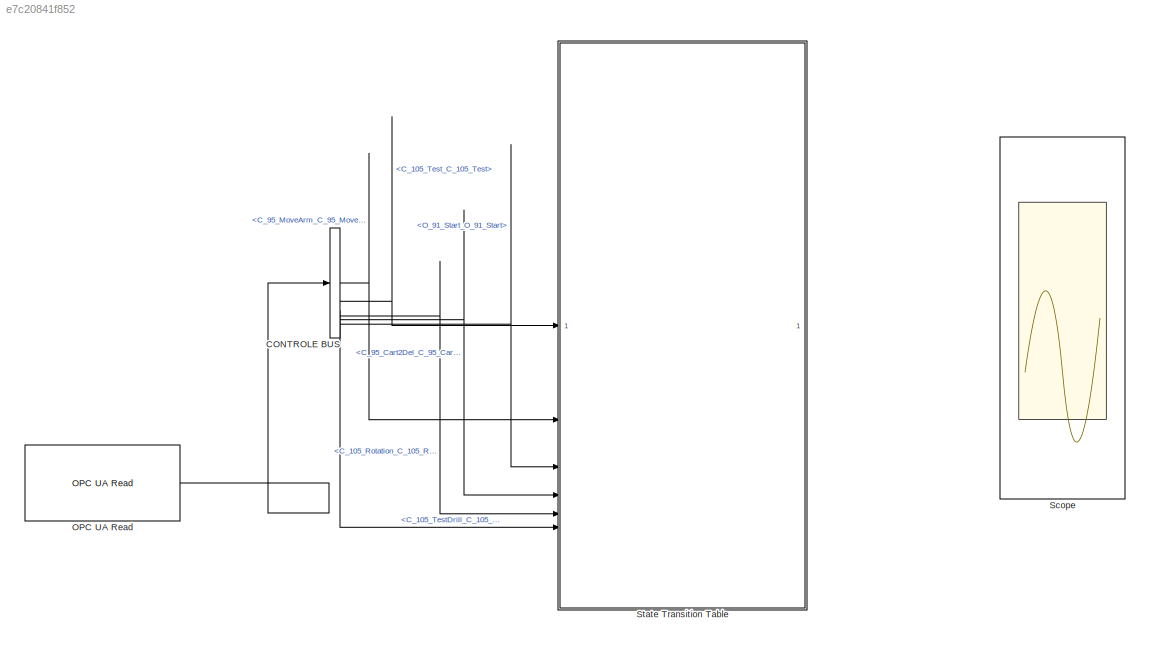
MODEL slx_e7c20841f852
KIND model
CONFIG AbsTol = auto
CONFIG EnableMultiTasking = off
CONFIG FixedStep = auto
CONFIG MaxStep = auto
CONFIG MinStep = auto
CONFIG RelTol = 1e-3
CONFIG SampleTimeConstraint = Unconstrained
CONFIG SolverName = VariableStepAuto
CONFIG StartTime = 0.0
CONFIG StopTime = 30
BLOCK [BusSelector] CONTROLE BUS 
  OutputSignals = C_95_MoveArm_C_95_MoveArm,C_105_Test_C_105_Test,C_105_TestDrill_C_105_TestDrill,C_105_Rotation_C_105_Rotation,C_95_Cart2Del_C_95_Cart2Del,C_95_Del2Cart_C_95_Del2Cart,O_91_Start_O_91_Start
BLOCK [Reference] OPC UA Read  REF=opcualib/OPC UA Read
  SourceBlock = opcualib/OPC UA Read
  SourceType = opcUARead
BLOCK [Scope] Scope
  Floating = off
  NumInputPorts = 1
  ScopeSpecificationString = Simulink.scopes.TimeScopeBlockCfg('CurrentConfiguration', extmgr.ConfigurationSet(extmgr.Configuration('Core','General UI',true),extmgr.Configuration('Core','Source UI',true),extmgr.Configuration('Sources','WiredSimulink',true),extmgr.Configuration('Visuals','Time Domain',true),extmgr.Configuration('Tools','Plot Navigation',true),extmgr.Configuration('Tools','Measurements',true)),'Version','2024a'...<+1ch>
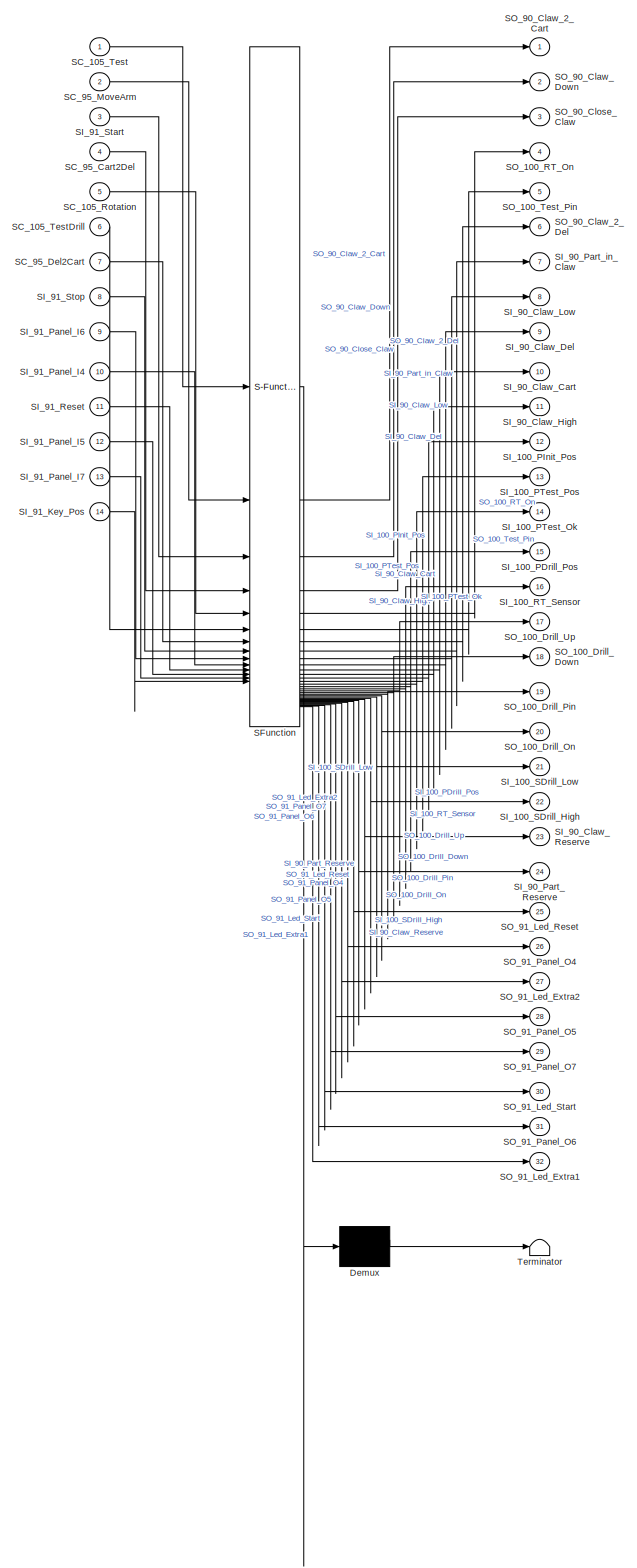
[diagram: State Transition Table - part 1/1, most of the canvas]
BLOCK [SubSystem] State Transition Table
  ErrorFcn = Stateflow.Translate.translate
  PermitHierarchicalResolution = ExplicitOnly
  SFBlockType = State Transition Table
  TreatAsAtomicUnit = on
BLOCK [Demux] State Transition Table/ Demux 
  Outputs = 1
BLOCK [S-Function] State Transition Table/ SFunction 
  EnableBusSupport = on
  FunctionName = sf_sfun
  PortCounts = [14 33]
  SFcnIsStateOwnerBlock = off
  SFunctionDeploymentMode = off
  Tag = Stateflow S-Function 4
BLOCK [Terminator] State Transition Table/ Terminator 
BLOCK [Inport] State Transition Table/SC_105_Rotation
  Port = 5
BLOCK [Inport] State Transition Table/SC_105_Test
BLOCK [Inport] State Transition Table/SC_105_TestDrill
  Port = 6
BLOCK [Inport] State Transition Table/SC_95_Cart2Del
  Port = 4
BLOCK [Inport] State Transition Table/SC_95_Del2Cart
  Port = 7
BLOCK [Inport] State Transition Table/SC_95_MoveArm
  Port = 2
BLOCK [Outport] State Transition Table/SI_100_PDrill_Pos
  Port = 15
BLOCK [Outport] State Transition Table/SI_100_PInit_Pos
  Port = 12
BLOCK [Outport] State Transition Table/SI_100_PTest_Ok
  Port = 14
BLOCK [Outport] State Transition Table/SI_100_PTest_Pos
  Port = 13
BLOCK [Outport] State Transition Table/SI_100_RT_Sensor
  Port = 16
BLOCK [Outport] State Transition Table/SI_100_SDrill_High
  Port = 22
BLOCK [Outport] State Transition Table/SI_100_SDrill_Low
  Port = 21
BLOCK [Outport] State Transition Table/SI_90_Claw_Cart
  Port = 10
BLOCK [Outport] State Transition Table/SI_90_Claw_Del
  Port = 9
BLOCK [Outport] State Transition Table/SI_90_Claw_High
  Port = 11
BLOCK [Outport] State Transition Table/SI_90_Claw_Low
  Port = 8
BLOCK [Outport] State Transition Table/SI_90_Claw_Reserve
  Port = 23
BLOCK [Outport] State Transition Table/SI_90_Part_Reserve
  Port = 24
BLOCK [Outport] State Transition Table/SI_90_Part_in_Claw
  Port = 7
BLOCK [Inport] State Transition Table/SI_91_Key_Pos
  Port = 14
BLOCK [Inport] State Transition Table/SI_91_Panel_I4
  Port = 10
BLOCK [Inport] State Transition Table/SI_91_Panel_I5
  Port = 12
BLOCK [Inport] State Transition Table/SI_91_Panel_I6
  Port = 9
BLOCK [Inport] State Transition Table/SI_91_Panel_I7
  Port = 13
BLOCK [Inport] State Transition Table/SI_91_Reset
  Port = 11
BLOCK [Inport] State Transition Table/SI_91_Start
  Port = 3
BLOCK [Inport] State Transition Table/SI_91_Stop
  Port = 8
BLOCK [Outport] State Transition Table/SO_100_Drill_Down
  Port = 18
BLOCK [Outport] State Transition Table/SO_100_Drill_On
  Port = 20
BLOCK [Outport] State Transition Table/SO_100_Drill_Pin
  Port = 19
BLOCK [Outport] State Transition Table/SO_100_Drill_Up
  Port = 17
BLOCK [Outport] State Transition Table/SO_100_RT_On
  Port = 4
BLOCK [Outport] State Transition Table/SO_100_Test_Pin
  Port = 5
BLOCK [Outport] State Transition Table/SO_90_Claw_2_Cart
BLOCK [Outport] State Transition Table/SO_90_Claw_2_Del
  Port = 6
BLOCK [Outport] State Transition Table/SO_90_Claw_Down
  Port = 2
BLOCK [Outport] State Transition Table/SO_90_Close_Claw
  Port = 3
BLOCK [Outport] State Transition Table/SO_91_Led_Extra1
  Port = 32
BLOCK [Outport] State Transition Table/SO_91_Led_Extra2
  Port = 27
BLOCK [Outport] State Transition Table/SO_91_Led_Reset
  Port = 25
BLOCK [Outport] State Transition Table/SO_91_Led_Start
  Port = 30
BLOCK [Outport] State Transition Table/SO_91_Panel_O4
  Port = 26
BLOCK [Outport] State Transition Table/SO_91_Panel_O5
  Port = 28
BLOCK [Outport] State Transition Table/SO_91_Panel_O6
  Port = 31
BLOCK [Outport] State Transition Table/SO_91_Panel_O7
  Port = 29
LINE CONTROLE BUS :1 -> State Transition Table:2
LINE CONTROLE BUS :2 -> State Transition Table:1
LINE CONTROLE BUS :3 -> State Transition Table:6
LINE CONTROLE BUS :4 -> State Transition Table:5
LINE CONTROLE BUS :5 -> State Transition Table:4
LINE CONTROLE BUS :7 -> State Transition Table:3
LINE OPC UA Read:1 -> CONTROLE BUS :1
CHART State Transition Table states=107 transitions=184
  STATE_LABEL 'state1\nSO_90_Claw_2_Cart=0;\nSO_90_Claw_2_Del=0;\nSO_90_Claw_Down=0;\nSO_90_Close_Claw=0;\nSO_100_RT_On=0;\nSO_100_Test_Pin=0;\nSI_90_Claw_Cart=1;\nSI_90_Claw_Low=0;\nSI_90_Claw_High=1;\nSI_90_Part_in_Claw=0;\nSI_90_Claw_Del=0;\nSI_100_PInit_Pos\nSI_100_PDrill_Pos=0;\nSI_100_PTest_Pos=0;\nSI_100_RT_Sensor=1;\nSI_100_PTest_Ok=0;\nSO_100_Drill_On=0;\nSO_100_Drill_Down=0;\nSO_100_Drill_Up=0;\nSO_100_Drill_Pin=0;\nSI_100...<+334ch>'
  STATE_LABEL 'claw_down\nSO_90_Claw_2_Cart=0;\nSO_90_Claw_2_Del=0;\nSO_90_Claw_Down=1;\nSO_90_Close_Claw=0;\nSO_100_RT_On=0;\nSO_100_Test_Pin=0;\n'
  STATE_LABEL 'claw_down_1'
  STATE_LABEL 'after(0.1,sec)\n{SI_90_Claw_High=0;}'
  STATE_LABEL 'claw_down_1'
  STATE_LABEL 'CLAW_UP\nSO_90_Claw_2_Cart=0;\nSO_90_Claw_2_Del=0;\nSO_90_Claw_Down=0;\nSO_90_Close_Claw=1;\nSO_100_RT_On=0;\nSO_100_Test_Pin=0;'
  STATE_LABEL 'CLAW_UP_1'
  STATE_LABEL 'after(1.8,sec)\n{SI_90_Claw_Low=0;}'
  STATE_LABEL 'CLAW_UP_1'
  STATE_LABEL 'claw_to_del\nSO_90_Claw_2_Cart=0;\nSO_90_Claw_2_Del=1;\nSO_90_Claw_Down=0;\nSO_90_Close_Claw=1;\nSO_100_RT_On=0;\nSO_100_Test_Pin=0;'
  STATE_LABEL 'claw_to_del_1'
  STATE_LABEL 'after(0.4,sec)\n{SI_90_Claw_Cart=0;}'
  STATE_LABEL 'claw_to_del_1'
  STATE_LABEL 'claw_down_at_cart\nSO_90_Claw_2_Cart=0;\nSO_90_Claw_2_Del=0;\nSO_90_Claw_Down=1;\nSO_90_Close_Claw=1;\nSO_100_RT_On=0;\nSO_100_Test_Pin=0;'
  STATE_LABEL 'claw_down_at_cart_1'
  STATE_LABEL 'after(0.1,sec)\n{SI_90_Claw_High=0;}'
  STATE_LABEL 'claw_down_at_cart_1'
  STATE_LABEL 'claw_up_at_del\nSO_90_Claw_2_Cart=0;\nSO_90_Claw_2_Del=0;\nSO_90_Claw_Down=0;\nSO_90_Close_Claw=0;\nSO_100_RT_On=0;\nSO_100_Test_Pin=0;'
  STATE_LABEL 'claw_up_at_del_1'
  STATE_LABEL 'after(0.25,sec)\n{SI_90_Claw_Low=0;}'
  STATE_LABEL 'claw_up_at_del_1'
  STATE_LABEL 'which_opperation '
  STATE_LABEL 'TEST_OPERATION_1\nSO_90_Claw_2_Del=0;\nSO_90_Claw_Down=0;\nSO_90_Close_Claw=0;\nSO_100_RT_On=1;\nSO_100_Test_Pin=0;'
  STATE_LABEL 'TEST_OPERATION_1_1'
  STATE_LABEL 'TEST_OPERATION_1_2'
  STATE_LABEL 'TEST_OPERATION_1_3'
  STATE_LABEL 'TEST_OPERATION_1_4'
  STATE_LABEL 'after(0.3,sec)\n{SI_100_PDrill_Pos=0;\nSI_100_PInit_Pos=0;\nSI_100_PTest_Pos=0;}'
  STATE_LABEL 'after(0.1,sec)\n{SI_100_RT_Sensor=0;\nSI_100_PDrill_Pos=1;\nSI_100_PInit_Pos=1;\nSI_100_PTest_Pos=1;}'
  STATE_LABEL 'after(0.3,sec)\n{SI_100_PDrill_Pos=0;\nSI_100_PInit_Pos=0;\nSI_100_PTest_Pos=0;}'
  STATE_LABEL 'after(0.5,sec)\n{SI_100_PDrill_Pos=1;\nSI_100_PInit_Pos=1;\nSI_100_PTest_Pos=1;}'
  STATE_LABEL 'TEST_OPERATION_1_1'
  STATE_LABEL 'TEST_OPERATION_1_2'
  STATE_LABEL 'TEST_OPERATION_1_3'
  STATE_LABEL 'TEST_OPERATION_1_4'
  STATE_LABEL 'TEST_OPERATION_2\nSO_90_Claw_2_Del=0;\nSO_90_Claw_Down=0;\nSO_90_Close_Claw=0;\nSO_100_RT_On=1;\nSO_100_Test_Pin=0;'
  STATE_LABEL 'TEST_OPERATION_2_1'
  STATE_LABEL 'TEST_OPERATION_2_2'
  STATE_LABEL 'TEST_OPERATION_2_3'
  STATE_LABEL 'TEST_OPERATION_2_4'
CHART  states=0 transitions=0
